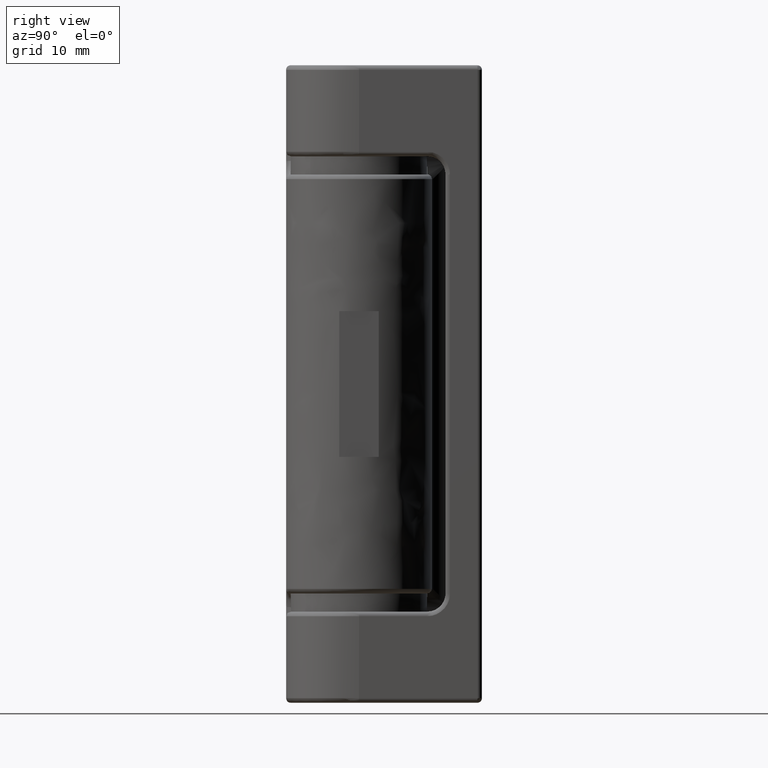
[diagram: clean part render]
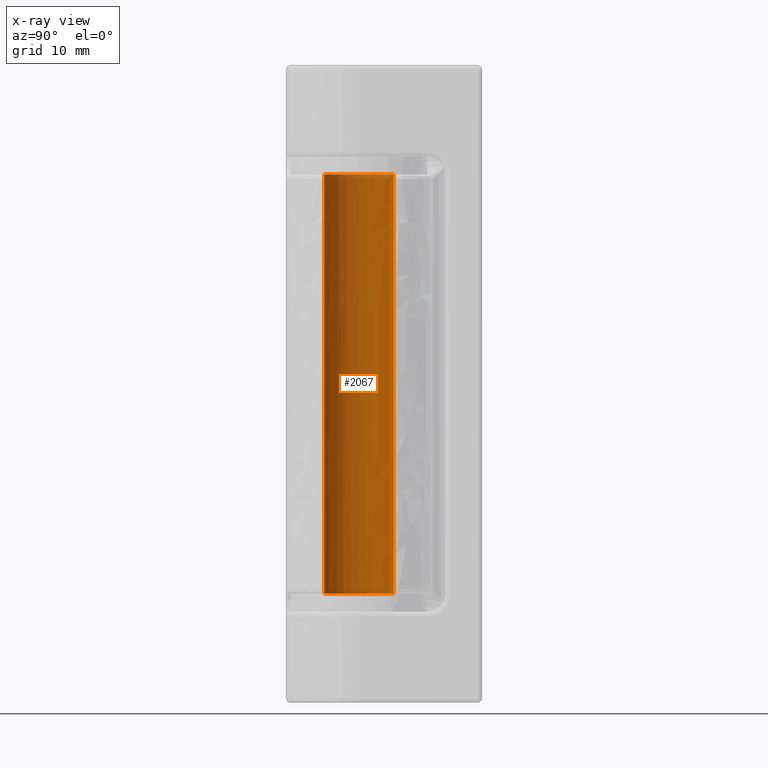
[diagram: x-ray — body ghosted, one internal face saturated and labeled with its STEP entity id]
A machine part, right view, then the same camera in x-ray: the body is ghosted and one INTERNAL B-rep face — a face not visible from any outside direction — is saturated and labeled: STEP entity #2067.
In plain terms, the highlighted face is a freeform B-spline surface patch.
Its self-contained STEP definition (entity closure, byte-faithful):
#1969=CARTESIAN_POINT('',(-0.033378998281280,-3.824854355720454,59.150000000000013));
#1970=CARTESIAN_POINT('',(-3.858233354001734,-3.791475357439174,59.149999999999999));
#1971=CARTESIAN_POINT('',(-3.824854355720454,0.033378998281280,59.150000000000013));
#1972=CARTESIAN_POINT('',(-3.791475357439174,3.858233354001734,59.149999999999999));
#1973=CARTESIAN_POINT('',(0.033378998281280,3.824854355720454,59.150000000000013));
#1974=CARTESIAN_POINT('',(-0.033378998281280,-3.824854355720454,10.821249999999999));
#1975=CARTESIAN_POINT('',(-3.858233354001734,-3.791475357439174,10.821249999999999));
#1976=CARTESIAN_POINT('',(-3.824854355720454,0.033378998281280,10.821249999999999));
#1977=CARTESIAN_POINT('',(-3.791475357439174,3.858233354001734,10.821249999999999));
#1978=CARTESIAN_POINT('',(0.033378998281280,3.824854355720454,10.821249999999999));
#1986=(BOUNDED_SURFACE()B_SPLINE_SURFACE(2,1,((#1969,#1974),(#1970,#1975),(#1971,#1976),(#1972,#1977),(#1973,#1978)),.UNSPECIFIED.,.F.,.F.,.U.)B_SPLINE_SURFACE_WITH_KNOTS((3,2,3),(2,2),(0.0,6.337467504308352,12.674935008616700),(0.0,48.328750000000007),.UNSPECIFIED.)GEOMETRIC_REPRESENTATION_ITEM()RATIONAL_B_SPLINE_SURFACE(((1.0,1.0),(0.707106781186548,0.707106781186548),(1.0,1.0),(0.707106781186548,0.707106781186548),(1.0,1.0)))REPRESENTATION_ITEM('')SURFACE());
#1987=CARTESIAN_POINT('',(-3.825000000000000,0.0,12.0));
#1988=VERTEX_POINT('',#1987);
#1989=CARTESIAN_POINT('',(-0.033378998486462,-3.824854355718664,12.0));
#1990=VERTEX_POINT('',#1989);
#1991=CARTESIAN_POINT('',(-3.825000000000000,0.0,12.0));
#1992=CARTESIAN_POINT('',(-3.825000000000000,-3.791765380322377,12.000000000000002));
#1993=CARTESIAN_POINT('',(-0.033378998486462,-3.824854355718663,12.000000000000004));
#2001=(BOUNDED_CURVE()B_SPLINE_CURVE(2,(#1991,#1992,#1993),.UNSPECIFIED.,.F.,.U.)B_SPLINE_CURVE_WITH_KNOTS((3,3),(0.0,0.248460105655564),.UNSPECIFIED.)CURVE()GEOMETRIC_REPRESENTATION_ITEM()RATIONAL_B_SPLINE_CURVE((1.0,0.708910879631246,0.996414028078538))REPRESENTATION_ITEM(''));
#2002=EDGE_CURVE('',#1988,#1990,#2001,.T.);
#2003=ORIENTED_EDGE('',*,*,#2002,.F.);
#2004=CARTESIAN_POINT('',(0.033378998486461,3.824854355718664,12.0));
#2005=VERTEX_POINT('',#2004);
#2006=CARTESIAN_POINT('',(0.033378998486461,3.824854355718664,12.000000000000002));
#2007=CARTESIAN_POINT('',(0.016689816991780,3.825000000000000,11.999999999999996));
#2008=CARTESIAN_POINT('',(0.0,3.825000000000000,12.0));
#2009=CARTESIAN_POINT('',(-3.824999999999999,3.824999999999999,12.0));
#2010=CARTESIAN_POINT('',(-3.825000000000000,0.0,12.0));
#2018=(BOUNDED_CURVE()B_SPLINE_CURVE(2,(#2006,#2007,#2008,#2009,#2010),.UNSPECIFIED.,.F.,.U.)B_SPLINE_CURVE_WITH_KNOTS((3,2,3),(0.748460105655564,0.750000000000000,1.0),.UNSPECIFIED.)CURVE()GEOMETRIC_REPRESENTATION_ITEM()RATIONAL_B_SPLINE_CURVE((0.996414028078538,0.998195901555302,1.0,0.707106781186548,1.0))REPRESENTATION_ITEM(''));
#2019=EDGE_CURVE('',#2005,#1988,#2018,.T.);
#2020=ORIENTED_EDGE('',*,*,#2019,.F.);
#2021=CARTESIAN_POINT('',(0.033378998507361,3.824854355718481,58.0));
#2022=VERTEX_POINT('',#2021);
#2023=CARTESIAN_POINT('',(0.033378998507361,3.824854355718481,58.0));
#2024=CARTESIAN_POINT('',(0.033378998486461,3.824854355718664,12.0));
#2025=QUASI_UNIFORM_CURVE('',1,(#2023,#2024),.UNSPECIFIED.,.F.,.U.);
#2026=EDGE_CURVE('',#2022,#2005,#2025,.T.);
#2027=ORIENTED_EDGE('',*,*,#2026,.F.);
#2028=CARTESIAN_POINT('',(-3.825000000000000,0.0,58.0));
#2029=VERTEX_POINT('',#2028);
#2030=CARTESIAN_POINT('',(-3.825000000000000,0.0,58.0));
#2031=CARTESIAN_POINT('',(-3.824999999999999,3.824999999999999,58.0));
#2032=CARTESIAN_POINT('',(0.0,3.825000000000000,58.0));
#2033=CARTESIAN_POINT('',(0.016689817002230,3.824999999999999,58.0));
#2034=CARTESIAN_POINT('',(0.033378998507360,3.824854355718481,58.000000000000007));
#2042=(BOUNDED_CURVE()B_SPLINE_CURVE(2,(#2030,#2031,#2032,#2033,#2034),.UNSPECIFIED.,.F.,.U.)B_SPLINE_CURVE_WITH_KNOTS((3,2,3),(0.500000000000000,0.750000000000000,0.751539894345399),.UNSPECIFIED.)CURVE()GEOMETRIC_REPRESENTATION_ITEM()RATIONAL_B_SPLINE_CURVE((1.0,0.707106781186548,1.0,0.998195901554174,0.996414028076311))REPRESENTATION_ITEM(''));
#2043=EDGE_CURVE('',#2029,#2022,#2042,.T.);
#2044=ORIENTED_EDGE('',*,*,#2043,.F.);
#2045=CARTESIAN_POINT('',(-0.033378998507361,-3.824854355718481,58.0));
#2046=VERTEX_POINT('',#2045);
#2047=CARTESIAN_POINT('',(-0.033378998507361,-3.824854355718482,57.999999999999993));
#2048=CARTESIAN_POINT('',(-3.825000000000000,-3.791765380301658,58.000000000000007));
#2049=CARTESIAN_POINT('',(-3.825000000000000,0.0,58.0));
#2057=(BOUNDED_CURVE()B_SPLINE_CURVE(2,(#2047,#2048,#2049),.UNSPECIFIED.,.F.,.U.)B_SPLINE_CURVE_WITH_KNOTS((3,3),(0.251539894345399,0.500000000000000),.UNSPECIFIED.)CURVE()GEOMETRIC_REPRESENTATION_ITEM()RATIONAL_B_SPLINE_CURVE((0.996414028076311,0.708910879632373,1.0))REPRESENTATION_ITEM(''));
#2058=EDGE_CURVE('',#2046,#2029,#2057,.T.);
#2059=ORIENTED_EDGE('',*,*,#2058,.F.);
#2060=CARTESIAN_POINT('',(-0.033378998507361,-3.824854355718481,58.0));
#2061=CARTESIAN_POINT('',(-0.033378998486462,-3.824854355718664,12.0));
#2062=QUASI_UNIFORM_CURVE('',1,(#2060,#2061),.UNSPECIFIED.,.F.,.U.);
#2063=EDGE_CURVE('',#2046,#1990,#2062,.T.);
#2064=ORIENTED_EDGE('',*,*,#2063,.T.);
#2065=EDGE_LOOP('',(#2003,#2020,#2027,#2044,#2059,#2064));
#2066=FACE_OUTER_BOUND('',#2065,.T.);
#2067=ADVANCED_FACE('',(#2066),#1986,.F.);